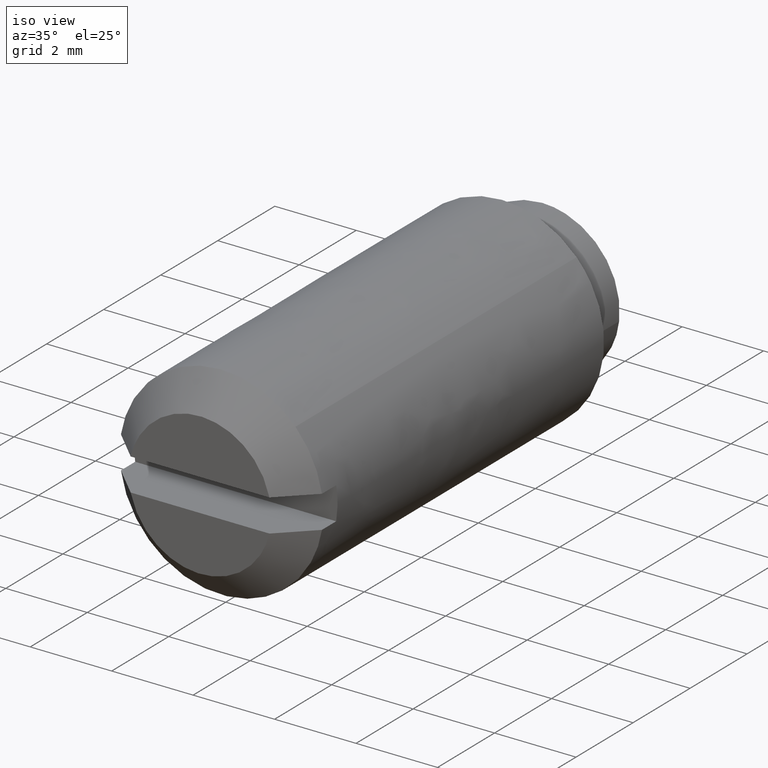
[diagram: clean part render]
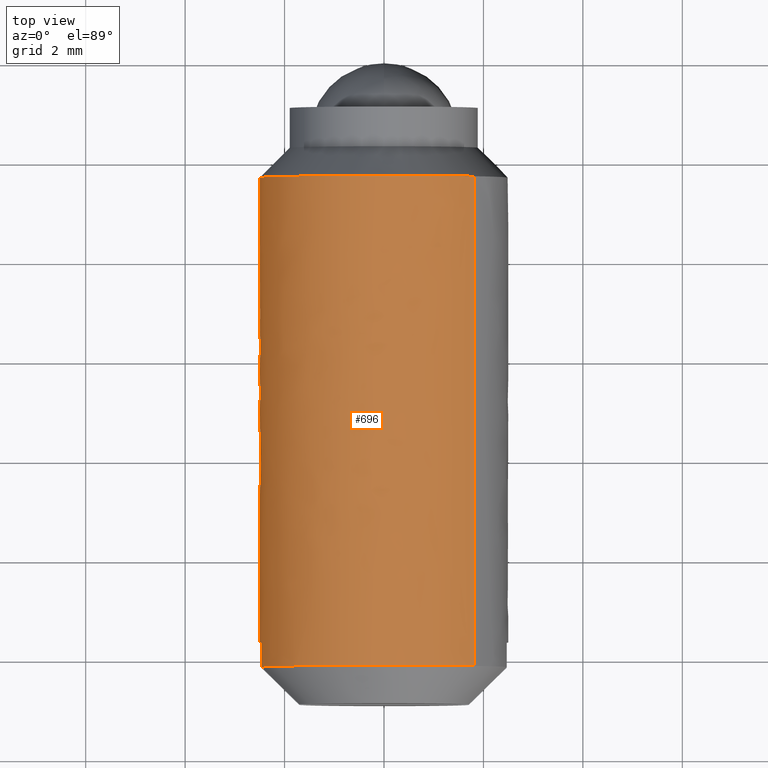
[diagram: tour spotlight — one face highlighted and labeled with its STEP entity id]
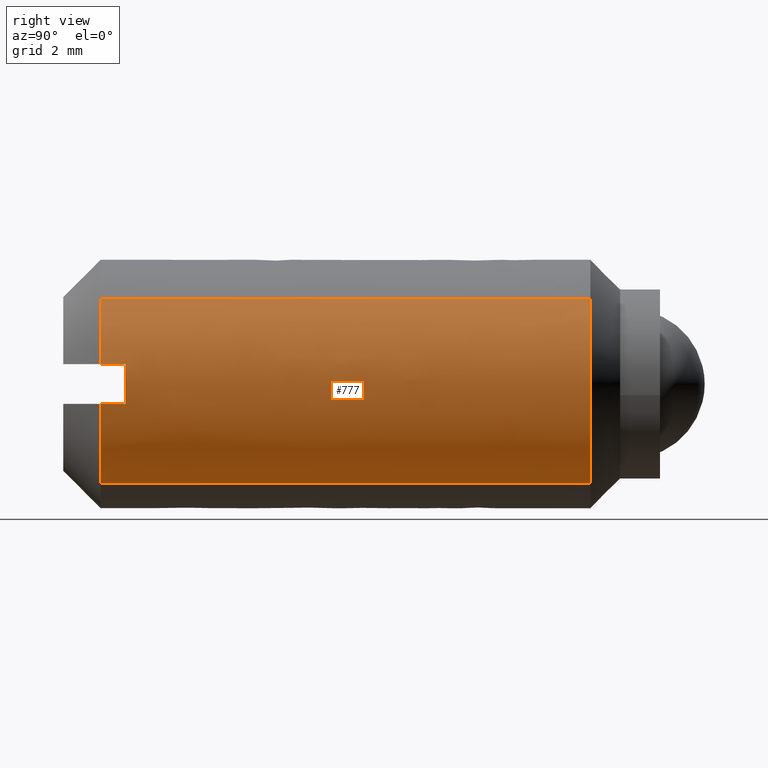
[diagram: tour spotlight — one face highlighted and labeled with its STEP entity id]
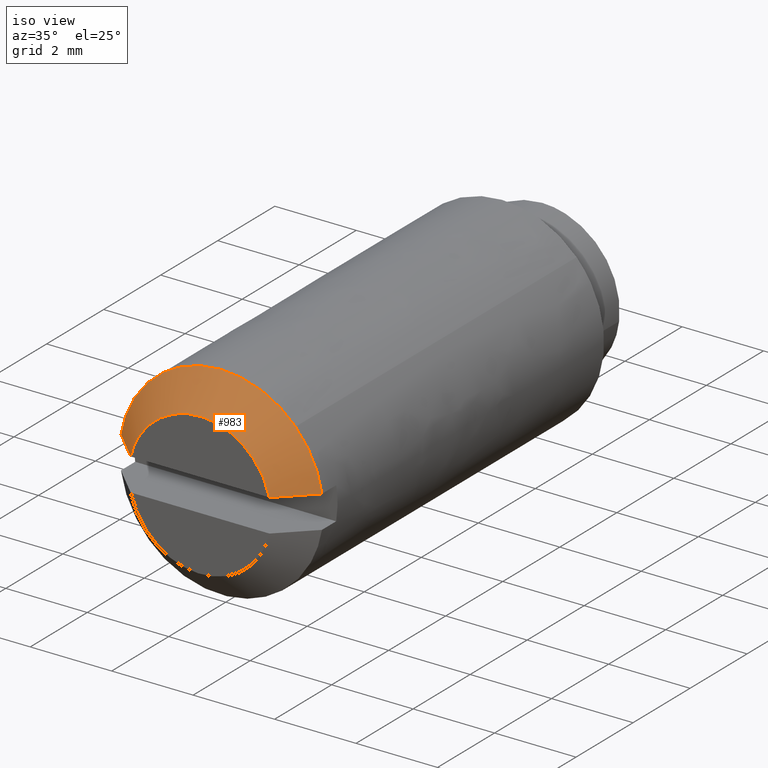
[diagram: tour spotlight — one face highlighted and labeled with its STEP entity id]
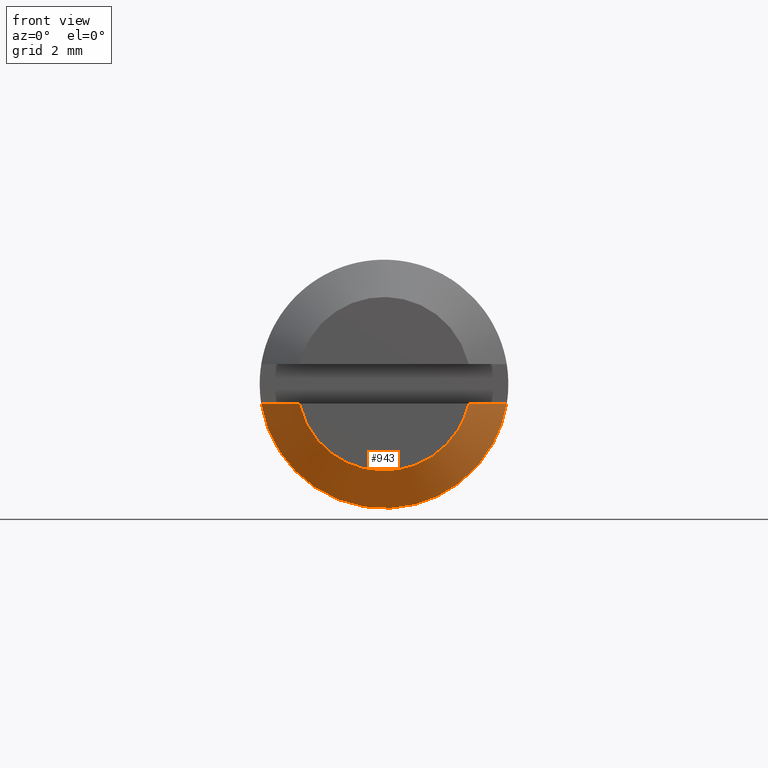
[diagram: tour spotlight — one face highlighted and labeled with its STEP entity id]
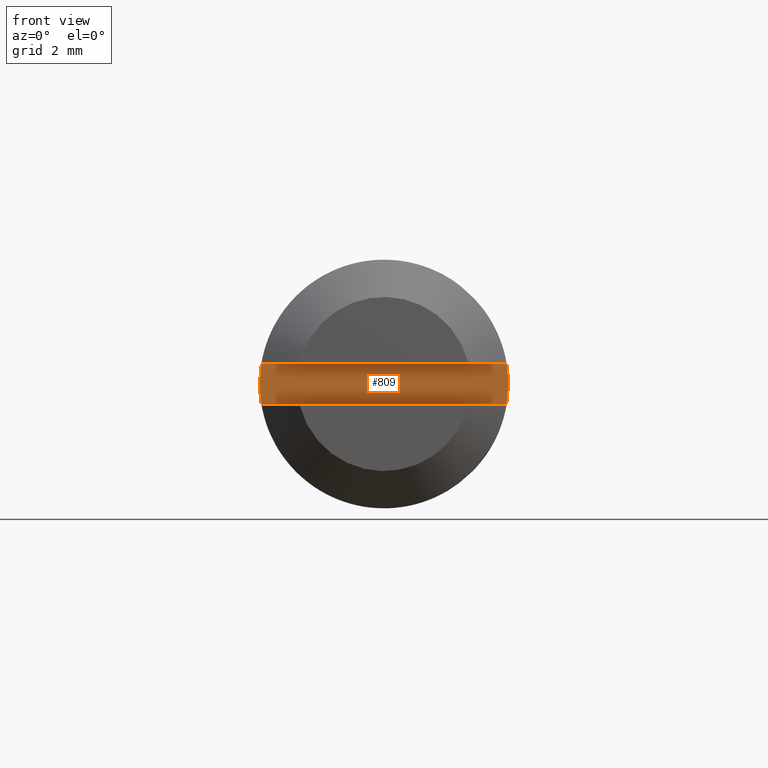
[diagram: tour spotlight — one face highlighted and labeled with its STEP entity id]
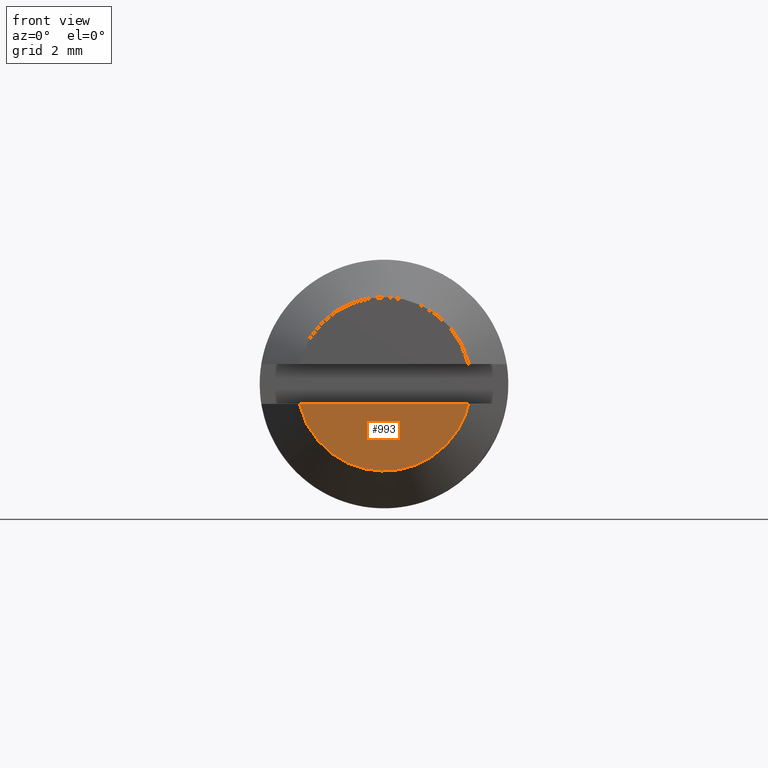
[diagram: tour spotlight — one face highlighted and labeled with its STEP entity id]
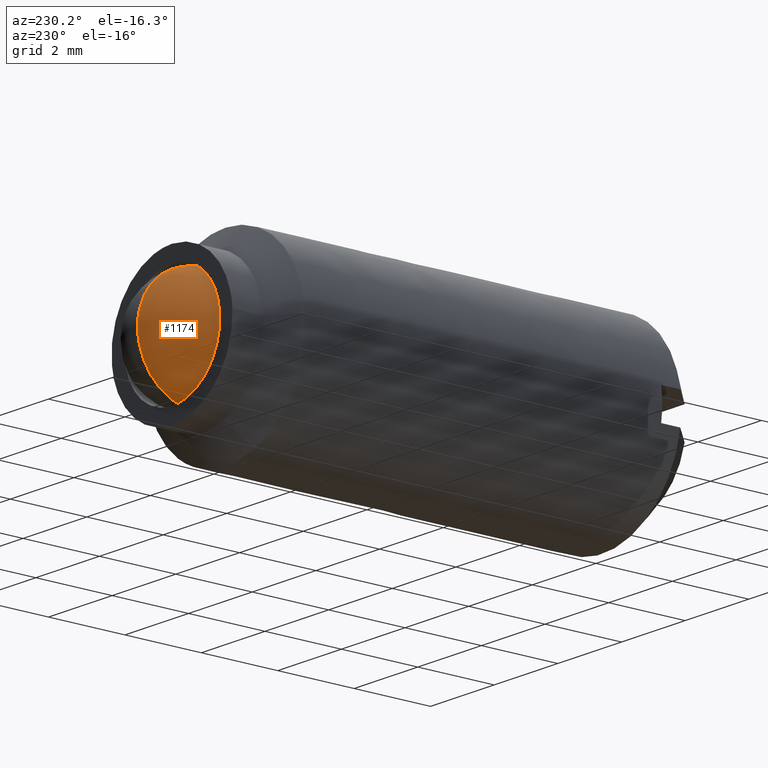
[diagram: tour spotlight — one face highlighted and labeled with its STEP entity id]
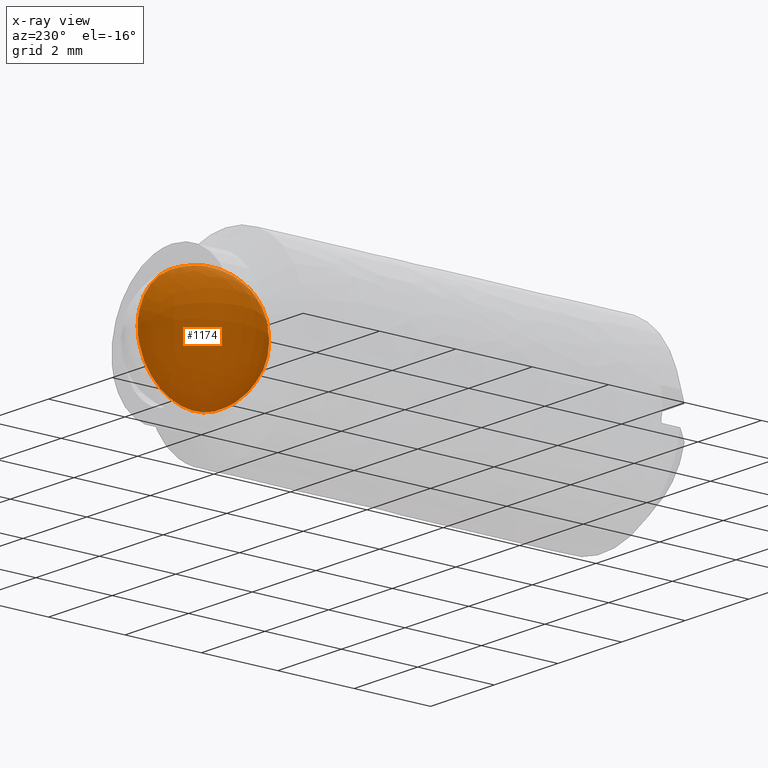
[diagram: x-ray of the same camera — body ghosted, this tour face saturated]
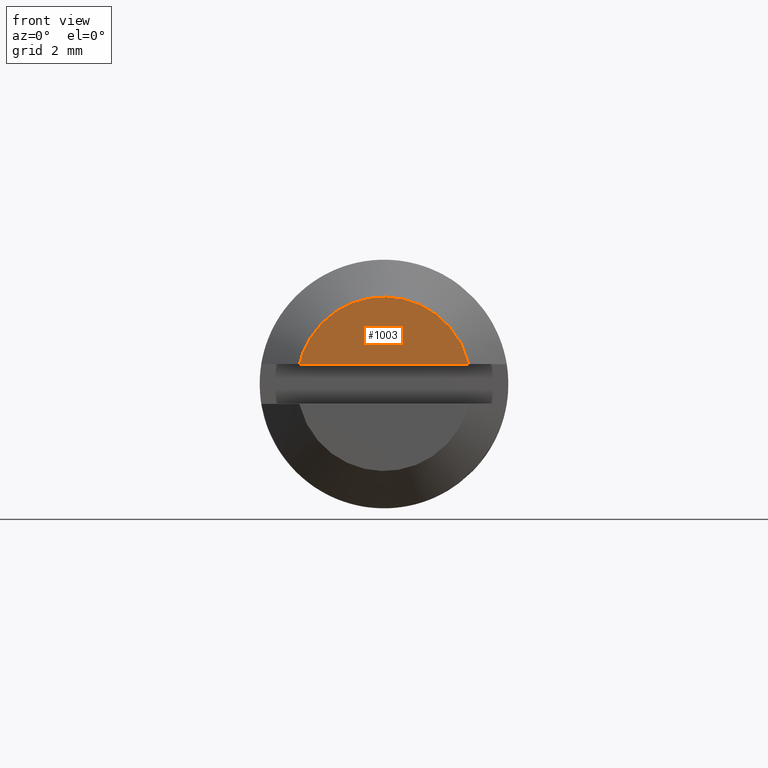
[diagram: tour spotlight — one face highlighted and labeled with its STEP entity id]
A machine part: a face-by-face anatomy tour. The part has 19 B-rep faces; the first image is the clean iso view, then the 8 largest visible faces are spotlighted one at a time (largest first), each with its STEP entity span.

Face 1 — top view, entity #696. In plain terms, the highlighted face is a freeform B-spline surface patch.
Definition (entity closure, byte-faithful):
#465=CARTESIAN_POINT('',(-2.495336996056258,-2.300000000002961,0.152621348859628));
#466=VERTEX_POINT('',#465);
#472=CARTESIAN_POINT('',(0.0,-2.300000000000000,2.499999999999999));
#473=VERTEX_POINT('',#472);
#474=CARTESIAN_POINT('',(0.0,-2.300000000000000,2.499999999999999));
#475=CARTESIAN_POINT('',(-2.351765167222105,-2.300000000000000,2.500000000000000));
#476=CARTESIAN_POINT('',(-2.495336996056259,-2.300000000002961,0.152621348859628));
#484=(BOUNDED_CURVE()B_SPLINE_CURVE(2,(#474,#475,#476),.UNSPECIFIED.,.F.,.U.)B_SPLINE_CURVE_WITH_KNOTS((3,3),(0.500000000000000,0.739332962238883),.UNSPECIFIED.)CURVE()GEOMETRIC_REPRESENTATION_ITEM()RATIONAL_B_SPLINE_CURVE((1.0,0.719603993286780,0.976072041666589))REPRESENTATION_ITEM(''));
#485=EDGE_CURVE('',#473,#466,#484,.T.);
#487=CARTESIAN_POINT('',(1.818315486528456,-2.299999999999970,1.715729813068122));
#488=VERTEX_POINT('',#487);
#489=CARTESIAN_POINT('',(1.818315486528456,-2.299999999999971,1.715729813068122));
#490=CARTESIAN_POINT('',(1.078292277158913,-2.300000000000000,2.500000000000000));
#491=CARTESIAN_POINT('',(0.0,-2.300000000000000,2.499999999999999));
#499=(BOUNDED_CURVE()B_SPLINE_CURVE(2,(#489,#490,#491),.UNSPECIFIED.,.F.,.U.)B_SPLINE_CURVE_WITH_KNOTS((3,3),(0.370620956215220,0.500000000000000),.UNSPECIFIED.)CURVE()GEOMETRIC_REPRESENTATION_ITEM()RATIONAL_B_SPLINE_CURVE((0.853733119474259,0.848423021675476,1.0))REPRESENTATION_ITEM(''));
#500=EDGE_CURVE('',#488,#473,#499,.T.);
#502=CARTESIAN_POINT('',(1.494303351258331,-2.299999999999954,-2.004259837051412));
#503=VERTEX_POINT('',#502);
#519=CARTESIAN_POINT('',(0.0,-2.300000000000000,-2.500000000000001));
#520=VERTEX_POINT('',#519);
#521=CARTESIAN_POINT('',(0.0,-2.300000000000000,-2.500000000000001));
#522=CARTESIAN_POINT('',(0.829382921732118,-2.300000000000000,-2.500000000000000));
#523=CARTESIAN_POINT('',(1.494303351258331,-2.299999999999954,-2.004259837051412));
#531=(BOUNDED_CURVE()B_SPLINE_CURVE(2,(#521,#522,#523),.UNSPECIFIED.,.F.,.U.)B_SPLINE_CURVE_WITH_KNOTS((3,3),(0.0,0.103121803616288),.UNSPECIFIED.)CURVE()GEOMETRIC_REPRESENTATION_ITEM()RATIONAL_B_SPLINE_CURVE((1.0,0.879185292035907,0.858039628780873))REPRESENTATION_ITEM(''));
#532=EDGE_CURVE('',#520,#503,#531,.T.);
#534=CARTESIAN_POINT('',(-0.879044935992926,-2.300000000001367,-2.340358946937847));
#535=VERTEX_POINT('',#534);
#536=CARTESIAN_POINT('',(-0.879044935992926,-2.300000000001368,-2.340358946937847));
#537=CARTESIAN_POINT('',(-0.454018465181815,-2.299999999999999,-2.500000000000001));
#538=CARTESIAN_POINT('',(0.0,-2.300000000000000,-2.500000000000001));
#546=(BOUNDED_CURVE()B_SPLINE_CURVE(2,(#536,#537,#538),.UNSPECIFIED.,.F.,.U.)B_SPLINE_CURVE_WITH_KNOTS((3,3),(0.940284170897085,1.0),.UNSPECIFIED.)CURVE()GEOMETRIC_REPRESENTATION_ITEM()RATIONAL_B_SPLINE_CURVE((0.893499554633533,0.930038554399733,1.0))REPRESENTATION_ITEM(''));
#547=EDGE_CURVE('',#535,#520,#546,.T.);
#573=CARTESIAN_POINT('',(-2.495336996056259,-2.300000000002961,0.152621348859628));
#574=CARTESIAN_POINT('',(-2.500000000000000,-2.300000000000000,0.076381908268839));
#575=CARTESIAN_POINT('',(-2.500000000000000,-2.300000000000000,-8.511014E-016));
#576=CARTESIAN_POINT('',(-2.500000000000000,-2.300000000000000,-1.731523989214695));
#577=CARTESIAN_POINT('',(-0.879044935992926,-2.300000000001367,-2.340358946937847));
#585=(BOUNDED_CURVE()B_SPLINE_CURVE(2,(#573,#574,#575,#576,#577),.UNSPECIFIED.,.F.,.U.)B_SPLINE_CURVE_WITH_KNOTS((3,2,3),(0.739332962238884,0.750000000000000,0.940284170897086),.UNSPECIFIED.)CURVE()GEOMETRIC_REPRESENTATION_ITEM()RATIONAL_B_SPLINE_CURVE((0.976072041666591,0.987502787899768,1.0,0.777068226786814,0.893499554633534))REPRESENTATION_ITEM(''));
#586=EDGE_CURVE('',#466,#535,#585,.T.);
#592=CARTESIAN_POINT('',(1.818315436100052,-2.053750000000000,1.715729866511703));
#593=CARTESIAN_POINT('',(0.290472229110461,-2.053750000000000,3.334924671844324));
#594=CARTESIAN_POINT('',(-1.494304054914435,-2.053749999999999,2.004259312430971));
#595=CARTESIAN_POINT('',(-3.498563367345406,-2.053749999999998,0.509955257516536));
#596=CARTESIAN_POINT('',(-2.004259312430972,-2.053749999999999,-1.494304054914436));
#597=CARTESIAN_POINT('',(-0.509955257516536,-2.053749999999998,-3.498563367345407));
#598=CARTESIAN_POINT('',(1.494304054914435,-2.053749999999999,-2.004259312430972));
#599=CARTESIAN_POINT('',(1.818315436100052,-12.402406250000002,1.715729866511703));
#600=CARTESIAN_POINT('',(0.290472229110461,-12.402406250000002,3.334924671844324));
#601=CARTESIAN_POINT('',(-1.494304054914435,-12.402406250000000,2.004259312430971));
#602=CARTESIAN_POINT('',(-3.498563367345406,-12.402406250000002,0.509955257516536));
#603=CARTESIAN_POINT('',(-2.004259312430972,-12.402406250000000,-1.494304054914436));
#604=CARTESIAN_POINT('',(-0.509955257516536,-12.402406250000002,-3.498563367345407));
#605=CARTESIAN_POINT('',(1.494304054914435,-12.402406250000000,-2.004259312430972));
#613=(BOUNDED_SURFACE()B_SPLINE_SURFACE(2,1,((#592,#599),(#593,#600),(#594,#601),(#595,#602),(#596,#603),(#597,#604),(#598,#605)),.UNSPECIFIED.,.F.,.F.,.U.)B_SPLINE_SURFACE_WITH_KNOTS((3,2,2,3),(2,2),(0.0,3.810764773832473,7.952900397563421,12.095036021294369),(0.0,10.348656249999999),.UNSPECIFIED.)GEOMETRIC_REPRESENTATION_ITEM()RATIONAL_B_SPLINE_SURFACE(((0.956886118190660,0.956886118190660),(0.730538238691624,0.730538238691624),(1.0,1.0),(0.707106781186548,0.707106781186548),(1.0,1.0),(0.707106781186548,0.707106781186548),(1.0,1.0)))REPRESENTATION_ITEM('')SURFACE());
#614=ORIENTED_EDGE('',*,*,#500,.T.);
#615=ORIENTED_EDGE('',*,*,#485,.T.);
#616=ORIENTED_EDGE('',*,*,#586,.T.);
#617=ORIENTED_EDGE('',*,*,#547,.T.);
#618=ORIENTED_EDGE('',*,*,#532,.T.);
#619=CARTESIAN_POINT('',(1.494304036467052,-12.150000000000000,-2.004259374637578));
#620=VERTEX_POINT('',#619);
#621=CARTESIAN_POINT('',(1.494303351258331,-2.299999999999954,-2.004259837051412));
#622=CARTESIAN_POINT('',(1.494304036467052,-12.150000000000000,-2.004259374637578));
#623=QUASI_UNIFORM_CURVE('',1,(#621,#622),.UNSPECIFIED.,.F.,.U.);
#624=EDGE_CURVE('',#503,#620,#623,.T.);
#625=ORIENTED_EDGE('',*,*,#624,.T.);
#626=CARTESIAN_POINT('',(-2.467793000000000,-12.150000000000000,-0.400000000000000));
#627=VERTEX_POINT('',#626);
#628=CARTESIAN_POINT('',(-2.467793000000000,-12.150000000000000,-0.400000000000000));
#629=CARTESIAN_POINT('',(-2.127407422512504,-12.149999999999997,-2.500000000000001));
#630=CARTESIAN_POINT('',(0.0,-12.150000000000000,-2.500000000000001));
#631=CARTESIAN_POINT('',(0.829383796575018,-12.149999999999995,-2.500000000000001));
#632=CARTESIAN_POINT('',(1.494304036467052,-12.149999999999995,-2.004259374637578));
#640=(BOUNDED_CURVE()B_SPLINE_CURVE(2,(#628,#629,#630,#631,#632),.UNSPECIFIED.,.F.,.U.)B_SPLINE_CURVE_WITH_KNOTS((3,2,3),(0.0,0.500000000000000,0.728112247232875),.UNSPECIFIED.)CURVE()GEOMETRIC_REPRESENTATION_ITEM()RATIONAL_B_SPLINE_CURVE((1.0,0.761577300960691,1.0,0.891225724661632,0.881702426877514))REPRESENTATION_ITEM(''));
#641=EDGE_CURVE('',#627,#620,#640,.T.);
#642=ORIENTED_EDGE('',*,*,#641,.F.);
#643=CARTESIAN_POINT('',(-2.467793000000000,-11.650000000000000,-0.400000000000000));
#644=VERTEX_POINT('',#643);
#645=CARTESIAN_POINT('',(-2.467793000000000,-11.650000000000000,-0.400000000000000));
#646=CARTESIAN_POINT('',(-2.467793000000000,-12.150000000000000,-0.400000000000000));
#647=QUASI_UNIFORM_CURVE('',1,(#645,#646),.UNSPECIFIED.,.F.,.U.);
#648=EDGE_CURVE('',#644,#627,#647,.T.);
#649=ORIENTED_EDGE('',*,*,#648,.F.);
#650=CARTESIAN_POINT('',(-2.467792535850615,-11.650000000000000,0.399999999999991));
#651=VERTEX_POINT('',#650);
#652=CARTESIAN_POINT('',(-2.467792535850615,-11.650000000000000,0.399999999999990));
#653=CARTESIAN_POINT('',(-2.532627801631262,-11.650000000000000,0.000000037616551));
#654=CARTESIAN_POINT('',(-2.467793000000000,-11.650000000000000,-0.400000000000000));
#662=(BOUNDED_CURVE()B_SPLINE_CURVE(2,(#652,#653,#654),.UNSPECIFIED.,.F.,.U.)CURVE()GEOMETRIC_REPRESENTATION_ITEM()QUASI_UNIFORM_CURVE()RATIONAL_B_SPLINE_CURVE((1.0,0.987117016716690,1.0))REPRESENTATION_ITEM(''));
#663=EDGE_CURVE('',#651,#644,#662,.T.);
#664=ORIENTED_EDGE('',*,*,#663,.F.);
#665=CARTESIAN_POINT('',(-2.467792535850615,-12.150000000000000,0.399999999999991));
#666=VERTEX_POINT('',#665);
#667=CARTESIAN_POINT('',(-2.467792535850615,-11.650000000000000,0.399999999999991));
#668=CARTESIAN_POINT('',(-2.467792535850615,-12.150000000000000,0.399999999999991));
#669=QUASI_UNIFORM_CURVE('',1,(#667,#668),.UNSPECIFIED.,.F.,.U.);
#670=EDGE_CURVE('',#651,#666,#669,.T.);
#671=ORIENTED_EDGE('',*,*,#670,.T.);
#672=CARTESIAN_POINT('',(1.818315981910234,-12.150000000000000,1.715729391257244));
#673=VERTEX_POINT('',#672);
#674=CARTESIAN_POINT('',(1.818315981910233,-12.149999999999999,1.715729391257244));
#675=CARTESIAN_POINT('',(1.078293002430174,-12.150000000000004,2.499999983984353));
#676=CARTESIAN_POINT('',(0.000000037131944,-12.150000000000000,2.499999999999999));
#677=CARTESIAN_POINT('',(-2.127407353370267,-12.150000000000000,2.500000031597907));
#678=CARTESIAN_POINT('',(-2.467792535850615,-12.150000000000000,0.399999999999992));
#686=(BOUNDED_CURVE()B_SPLINE_CURVE(2,(#674,#675,#676,#677,#678),.UNSPECIFIED.,.F.,.U.)B_SPLINE_CURVE_WITH_KNOTS((3,2,3),(0.212803628645489,0.500000000000000,1.0),.UNSPECIFIED.)CURVE()GEOMETRIC_REPRESENTATION_ITEM()RATIONAL_B_SPLINE_CURVE((0.883427648863178,0.863051734739189,1.0,0.761577305773540,1.0))REPRESENTATION_ITEM(''));
#687=EDGE_CURVE('',#673,#666,#686,.T.);
#688=ORIENTED_EDGE('',*,*,#687,.F.);
#689=CARTESIAN_POINT('',(1.818315486528456,-2.299999999999970,1.715729813068122));
#690=CARTESIAN_POINT('',(1.818315981910234,-12.150000000000000,1.715729391257244));
#691=QUASI_UNIFORM_CURVE('',1,(#689,#690),.UNSPECIFIED.,.F.,.U.);
#692=EDGE_CURVE('',#488,#673,#691,.T.);
#693=ORIENTED_EDGE('',*,*,#692,.F.);
#694=EDGE_LOOP('',(#614,#615,#616,#617,#618,#625,#642,#649,#664,#671,#688,#693));
#695=FACE_OUTER_BOUND('',#694,.T.);
#696=ADVANCED_FACE('',(#695),#613,.T.);

Face 2 — right view, entity #777. In plain terms, the highlighted face is a freeform B-spline surface patch.
Definition (entity closure, byte-faithful):
#487=CARTESIAN_POINT('',(1.818315486528456,-2.299999999999970,1.715729813068122));
#488=VERTEX_POINT('',#487);
#502=CARTESIAN_POINT('',(1.494303351258331,-2.299999999999954,-2.004259837051412));
#503=VERTEX_POINT('',#502);
#504=CARTESIAN_POINT('',(1.494303351258332,-2.299999999999953,-2.004259837051412));
#505=CARTESIAN_POINT('',(2.500000000000000,-2.300000000000000,-1.254449486241988));
#506=CARTESIAN_POINT('',(2.500000000000000,-2.300000000000000,-8.511014E-016));
#507=CARTESIAN_POINT('',(2.500000000000000,-2.300000000000000,0.993286470697336));
#508=CARTESIAN_POINT('',(1.818315486528456,-2.299999999999971,1.715729813068123));
#516=(BOUNDED_CURVE()B_SPLINE_CURVE(2,(#504,#505,#506,#507,#508),.UNSPECIFIED.,.F.,.U.)B_SPLINE_CURVE_WITH_KNOTS((3,2,3),(0.103121803616288,0.250000000000000,0.370620956215219),.UNSPECIFIED.)CURVE()GEOMETRIC_REPRESENTATION_ITEM()RATIONAL_B_SPLINE_CURVE((0.858039628780873,0.827921489150641,1.0,0.858683759511071,0.853733119474259))REPRESENTATION_ITEM(''));
#517=EDGE_CURVE('',#503,#488,#516,.T.);
#619=CARTESIAN_POINT('',(1.494304036467052,-12.150000000000000,-2.004259374637578));
#620=VERTEX_POINT('',#619);
#621=CARTESIAN_POINT('',(1.494303351258331,-2.299999999999954,-2.004259837051412));
#622=CARTESIAN_POINT('',(1.494304036467052,-12.150000000000000,-2.004259374637578));
#623=QUASI_UNIFORM_CURVE('',1,(#621,#622),.UNSPECIFIED.,.F.,.U.);
#624=EDGE_CURVE('',#503,#620,#623,.T.);
#672=CARTESIAN_POINT('',(1.818315981910234,-12.150000000000000,1.715729391257244));
#673=VERTEX_POINT('',#672);
#689=CARTESIAN_POINT('',(1.818315486528456,-2.299999999999970,1.715729813068122));
#690=CARTESIAN_POINT('',(1.818315981910234,-12.150000000000000,1.715729391257244));
#691=QUASI_UNIFORM_CURVE('',1,(#689,#690),.UNSPECIFIED.,.F.,.U.);
#692=EDGE_CURVE('',#488,#673,#691,.T.);
#697=CARTESIAN_POINT('',(1.494304054914435,-2.053749999999999,-2.004259312430972));
#698=CARTESIAN_POINT('',(3.498563367345406,-2.053749999999998,-0.509955257516537));
#699=CARTESIAN_POINT('',(2.004259312430972,-2.053749999999999,1.494304054914434));
#700=CARTESIAN_POINT('',(1.917700511125733,-2.053749999999999,1.610402437314139));
#701=CARTESIAN_POINT('',(1.818315436100052,-2.053750000000000,1.715729866511703));
#702=CARTESIAN_POINT('',(1.494304054914435,-12.402406250000000,-2.004259312430972));
#703=CARTESIAN_POINT('',(3.498563367345406,-12.402406250000002,-0.509955257516537));
#704=CARTESIAN_POINT('',(2.004259312430972,-12.402406250000000,1.494304054914434));
#705=CARTESIAN_POINT('',(1.917700511125733,-12.402406250000006,1.610402437314139));
#706=CARTESIAN_POINT('',(1.818315436100052,-12.402406250000002,1.715729866511703));
#714=(BOUNDED_SURFACE()B_SPLINE_SURFACE(2,1,((#697,#702),(#698,#703),(#699,#704),(#700,#705),(#701,#706)),.UNSPECIFIED.,.F.,.F.,.U.)B_SPLINE_SURFACE_WITH_KNOTS((3,2,3),(2,2),(0.0,4.142135623730948,4.473506473629424),(0.0,10.348656249999999),.UNSPECIFIED.)GEOMETRIC_REPRESENTATION_ITEM()RATIONAL_B_SPLINE_SURFACE(((1.0,1.0),(0.707106781186548,0.707106781186548),(1.0,1.0),(0.976568542494924,0.976568542494924),(0.956886118190660,0.956886118190660)))REPRESENTATION_ITEM('')SURFACE());
#715=ORIENTED_EDGE('',*,*,#517,.T.);
#716=ORIENTED_EDGE('',*,*,#692,.T.);
#717=CARTESIAN_POINT('',(2.467793000000000,-12.150000000000000,0.399999999999991));
#718=VERTEX_POINT('',#717);
#719=CARTESIAN_POINT('',(2.467793000000000,-12.150000000000000,0.399999999999991));
#720=CARTESIAN_POINT('',(2.345002795860268,-12.149999999999999,1.157550982614433));
#721=CARTESIAN_POINT('',(1.818315981910233,-12.149999999999999,1.715729391257244));
#729=(BOUNDED_CURVE()B_SPLINE_CURVE(2,(#719,#720,#721),.UNSPECIFIED.,.F.,.U.)B_SPLINE_CURVE_WITH_KNOTS((3,3),(0.0,0.212803628645489),.UNSPECIFIED.)CURVE()GEOMETRIC_REPRESENTATION_ITEM()RATIONAL_B_SPLINE_CURVE((1.0,0.898525571034351,0.883427648863178))REPRESENTATION_ITEM(''));
#730=EDGE_CURVE('',#718,#673,#729,.T.);
#731=ORIENTED_EDGE('',*,*,#730,.F.);
#732=CARTESIAN_POINT('',(2.467793000000000,-11.650000000000000,0.399999999999991));
#733=VERTEX_POINT('',#732);
#734=CARTESIAN_POINT('',(2.467793000000000,-11.650000000000000,0.399999999999991));
#735=CARTESIAN_POINT('',(2.467793000000000,-12.150000000000000,0.399999999999991));
#736=QUASI_UNIFORM_CURVE('',1,(#734,#735),.UNSPECIFIED.,.F.,.U.);
#737=EDGE_CURVE('',#733,#718,#736,.T.);
#738=ORIENTED_EDGE('',*,*,#737,.F.);
#739=CARTESIAN_POINT('',(2.467793000000000,-11.650000000000000,-0.400000000000000));
#740=VERTEX_POINT('',#739);
#741=CARTESIAN_POINT('',(2.467793000000000,-11.650000000000000,-0.400000000000000));
#742=CARTESIAN_POINT('',(2.532627795534064,-11.650000000000004,-5.800482E-015));
#743=CARTESIAN_POINT('',(2.467793000000000,-11.650000000000000,0.399999999999991));
#751=(BOUNDED_CURVE()B_SPLINE_CURVE(2,(#741,#742,#743),.UNSPECIFIED.,.F.,.U.)CURVE()GEOMETRIC_REPRESENTATION_ITEM()QUASI_UNIFORM_CURVE()RATIONAL_B_SPLINE_CURVE((1.0,0.987117019093134,1.0))REPRESENTATION_ITEM(''));
#752=EDGE_CURVE('',#740,#733,#751,.T.);
#753=ORIENTED_EDGE('',*,*,#752,.F.);
#754=CARTESIAN_POINT('',(2.467793000000000,-12.150000000000000,-0.400000000000000));
#755=VERTEX_POINT('',#754);
#756=CARTESIAN_POINT('',(2.467793000000000,-11.650000000000000,-0.400000000000000));
#757=CARTESIAN_POINT('',(2.467793000000000,-12.150000000000000,-0.400000000000000));
#758=QUASI_UNIFORM_CURVE('',1,(#756,#757),.UNSPECIFIED.,.F.,.U.);
#759=EDGE_CURVE('',#740,#755,#758,.T.);
#760=ORIENTED_EDGE('',*,*,#759,.T.);
#761=CARTESIAN_POINT('',(1.494304036467051,-12.149999999999997,-2.004259374637579));
#762=CARTESIAN_POINT('',(2.305832144477165,-12.149999999999995,-1.399213301305182));
#763=CARTESIAN_POINT('',(2.467793000000000,-12.150000000000000,-0.400000000000000));
#771=(BOUNDED_CURVE()B_SPLINE_CURVE(2,(#761,#762,#763),.UNSPECIFIED.,.F.,.U.)B_SPLINE_CURVE_WITH_KNOTS((3,3),(0.728112247232874,1.0),.UNSPECIFIED.)CURVE()GEOMETRIC_REPRESENTATION_ITEM()RATIONAL_B_SPLINE_CURVE((0.881702426877514,0.870351576299059,1.0))REPRESENTATION_ITEM(''));
#772=EDGE_CURVE('',#620,#755,#771,.T.);
#773=ORIENTED_EDGE('',*,*,#772,.F.);
#774=ORIENTED_EDGE('',*,*,#624,.F.);
#775=EDGE_LOOP('',(#715,#716,#731,#738,#753,#760,#773,#774));
#776=FACE_OUTER_BOUND('',#775,.T.);
#777=ADVANCED_FACE('',(#776),#714,.T.);

Face 3 — iso view, entity #983. In plain terms, the highlighted face is a freeform B-spline surface patch.
Definition (entity closure, byte-faithful):
#665=CARTESIAN_POINT('',(-2.467792535850615,-12.150000000000000,0.399999999999991));
#666=VERTEX_POINT('',#665);
#672=CARTESIAN_POINT('',(1.818315981910234,-12.150000000000000,1.715729391257244));
#673=VERTEX_POINT('',#672);
#674=CARTESIAN_POINT('',(1.818315981910233,-12.149999999999999,1.715729391257244));
#675=CARTESIAN_POINT('',(1.078293002430174,-12.150000000000004,2.499999983984353));
#676=CARTESIAN_POINT('',(0.000000037131944,-12.150000000000000,2.499999999999999));
#677=CARTESIAN_POINT('',(-2.127407353370267,-12.150000000000000,2.500000031597907));
#678=CARTESIAN_POINT('',(-2.467792535850615,-12.150000000000000,0.399999999999992));
#686=(BOUNDED_CURVE()B_SPLINE_CURVE(2,(#674,#675,#676,#677,#678),.UNSPECIFIED.,.F.,.U.)B_SPLINE_CURVE_WITH_KNOTS((3,2,3),(0.212803628645489,0.500000000000000,1.0),.UNSPECIFIED.)CURVE()GEOMETRIC_REPRESENTATION_ITEM()RATIONAL_B_SPLINE_CURVE((0.883427648863178,0.863051734739189,1.0,0.761577305773540,1.0))REPRESENTATION_ITEM(''));
#687=EDGE_CURVE('',#673,#666,#686,.T.);
#717=CARTESIAN_POINT('',(2.467793000000000,-12.150000000000000,0.399999999999991));
#718=VERTEX_POINT('',#717);
#719=CARTESIAN_POINT('',(2.467793000000000,-12.150000000000000,0.399999999999991));
#720=CARTESIAN_POINT('',(2.345002795860268,-12.149999999999999,1.157550982614433));
#721=CARTESIAN_POINT('',(1.818315981910233,-12.149999999999999,1.715729391257244));
#729=(BOUNDED_CURVE()B_SPLINE_CURVE(2,(#719,#720,#721),.UNSPECIFIED.,.F.,.U.)B_SPLINE_CURVE_WITH_KNOTS((3,3),(0.0,0.212803628645489),.UNSPECIFIED.)CURVE()GEOMETRIC_REPRESENTATION_ITEM()RATIONAL_B_SPLINE_CURVE((1.0,0.898525571034351,0.883427648863178))REPRESENTATION_ITEM(''));
#730=EDGE_CURVE('',#718,#673,#729,.T.);
#856=CARTESIAN_POINT('',(1.703672503740085,-12.900000000000000,0.399999999999991));
#857=VERTEX_POINT('',#856);
#858=CARTESIAN_POINT('',(1.703672503740085,-12.900000000000000,0.399999999999991));
#859=CARTESIAN_POINT('',(1.764615516513866,-12.840658835844939,0.399999999999991));
#860=CARTESIAN_POINT('',(1.825472964386370,-12.781228711003140,0.399999999999991));
#861=CARTESIAN_POINT('',(2.080599052584818,-12.531664605991240,0.399999999999992));
#862=CARTESIAN_POINT('',(2.274324897358173,-12.340966288524029,0.399999999999992));
#863=CARTESIAN_POINT('',(2.467793000000000,-12.150000000000000,0.399999999999991));
#864=B_SPLINE_CURVE_WITH_KNOTS('',3,(#858,#859,#860,#861,#862,#863),.UNSPECIFIED.,.F.,.U.,(4,2,4),(0.835884056411541,0.874999999999999,1.0),.UNSPECIFIED.);
#865=EDGE_CURVE('',#857,#718,#864,.T.);
#867=CARTESIAN_POINT('',(-1.703672503740085,-12.900000000000000,0.399999999999991));
#868=VERTEX_POINT('',#867);
#874=CARTESIAN_POINT('',(-2.467792535850615,-12.150000000000000,0.399999999999991));
#875=CARTESIAN_POINT('',(-2.273182254908020,-12.342093709223880,0.399999999999992));
#876=CARTESIAN_POINT('',(-2.078308495509723,-12.533919775919220,0.399999999999991));
#877=CARTESIAN_POINT('',(-1.823167580692881,-12.783478675686180,0.399999999999991));
#878=CARTESIAN_POINT('',(-1.763461630120250,-12.841781583011450,0.399999999999991));
#879=CARTESIAN_POINT('',(-1.703672503740085,-12.900000000000000,0.399999999999991));
#880=B_SPLINE_CURVE_WITH_KNOTS('',3,(#874,#875,#876,#877,#878,#879),.UNSPECIFIED.,.F.,.U.,(4,2,4),(0.0,0.124999999999999,0.163147342575306),.UNSPECIFIED.);
#881=EDGE_CURVE('',#666,#868,#880,.T.);
#944=CARTESIAN_POINT('',(1.719380882907873,-12.918749999999999,0.202375744571671));
#945=CARTESIAN_POINT('',(2.501947470679034,-12.130781250000000,0.294485932286016));
#946=CARTESIAN_POINT('',(1.538753624927346,-12.918750000000003,1.736981855403287));
#947=CARTESIAN_POINT('',(2.239108726958814,-12.130781249999997,2.527559427316541));
#948=CARTESIAN_POINT('',(-0.006435402441734,-12.918749999999999,1.731238039119810));
#949=CARTESIAN_POINT('',(-0.009364439852714,-12.130781250000000,2.519201345192127));
#950=CARTESIAN_POINT('',(-1.551624429810814,-12.918750000000003,1.725494222836333));
#951=CARTESIAN_POINT('',(-2.257837606664244,-12.130781249999997,2.510843263067713));
#952=CARTESIAN_POINT('',(-1.720837899384461,-12.918749999999999,0.189587675079552));
#953=CARTESIAN_POINT('',(-2.504067640051961,-12.130781250000000,0.275877444522350));
#961=(BOUNDED_SURFACE()B_SPLINE_SURFACE(1,2,((#944,#946,#948,#950,#952),(#945,#947,#949,#951,#953)),.UNSPECIFIED.,.F.,.F.,.U.)B_SPLINE_SURFACE_WITH_KNOTS((2,2),(3,2,3),(0.0,1.0),(0.0,3.842947207187311,7.685894414374622),.UNSPECIFIED.)GEOMETRIC_REPRESENTATION_ITEM()RATIONAL_B_SPLINE_SURFACE(((1.0,0.746057375061700,1.0,0.746057375061700,1.0),(1.0,0.746057375061700,1.0,0.746057375061700,1.0)))REPRESENTATION_ITEM('')SURFACE());
#962=ORIENTED_EDGE('',*,*,#730,.T.);
#963=ORIENTED_EDGE('',*,*,#687,.T.);
#964=ORIENTED_EDGE('',*,*,#881,.T.);
#965=CARTESIAN_POINT('',(1.703672503740084,-12.900000000000000,0.399999999999991));
#966=CARTESIAN_POINT('',(1.386710177462864,-12.900000000000004,1.749999999999999));
#967=CARTESIAN_POINT('',(0.0,-12.900000000000000,1.749999999999999));
#968=CARTESIAN_POINT('',(-1.386710177462864,-12.900000000000004,1.749999999999999));
#969=CARTESIAN_POINT('',(-1.703672503740084,-12.900000000000000,0.399999999999991));
#977=(BOUNDED_CURVE()B_SPLINE_CURVE(2,(#965,#966,#967,#968,#969),.UNSPECIFIED.,.F.,.U.)B_SPLINE_CURVE_WITH_KNOTS((3,2,3),(0.0,0.500000000000000,1.0),.UNSPECIFIED.)CURVE()GEOMETRIC_REPRESENTATION_ITEM()RATIONAL_B_SPLINE_CURVE((1.0,0.783763812819725,1.0,0.783763812819725,1.0))REPRESENTATION_ITEM(''));
#978=EDGE_CURVE('',#857,#868,#977,.T.);
#979=ORIENTED_EDGE('',*,*,#978,.F.);
#980=ORIENTED_EDGE('',*,*,#865,.T.);
#981=EDGE_LOOP('',(#962,#963,#964,#979,#980));
#982=FACE_OUTER_BOUND('',#981,.T.);
#983=ADVANCED_FACE('',(#982),#961,.T.);

Face 4 — front view, entity #943. In plain terms, the highlighted face is a freeform B-spline surface patch.
Definition (entity closure, byte-faithful):
#619=CARTESIAN_POINT('',(1.494304036467052,-12.150000000000000,-2.004259374637578));
#620=VERTEX_POINT('',#619);
#626=CARTESIAN_POINT('',(-2.467793000000000,-12.150000000000000,-0.400000000000000));
#627=VERTEX_POINT('',#626);
#628=CARTESIAN_POINT('',(-2.467793000000000,-12.150000000000000,-0.400000000000000));
#629=CARTESIAN_POINT('',(-2.127407422512504,-12.149999999999997,-2.500000000000001));
#630=CARTESIAN_POINT('',(0.0,-12.150000000000000,-2.500000000000001));
#631=CARTESIAN_POINT('',(0.829383796575018,-12.149999999999995,-2.500000000000001));
#632=CARTESIAN_POINT('',(1.494304036467052,-12.149999999999995,-2.004259374637578));
#640=(BOUNDED_CURVE()B_SPLINE_CURVE(2,(#628,#629,#630,#631,#632),.UNSPECIFIED.,.F.,.U.)B_SPLINE_CURVE_WITH_KNOTS((3,2,3),(0.0,0.500000000000000,0.728112247232875),.UNSPECIFIED.)CURVE()GEOMETRIC_REPRESENTATION_ITEM()RATIONAL_B_SPLINE_CURVE((1.0,0.761577300960691,1.0,0.891225724661632,0.881702426877514))REPRESENTATION_ITEM(''));
#641=EDGE_CURVE('',#627,#620,#640,.T.);
#754=CARTESIAN_POINT('',(2.467793000000000,-12.150000000000000,-0.400000000000000));
#755=VERTEX_POINT('',#754);
#761=CARTESIAN_POINT('',(1.494304036467051,-12.149999999999997,-2.004259374637579));
#762=CARTESIAN_POINT('',(2.305832144477165,-12.149999999999995,-1.399213301305182));
#763=CARTESIAN_POINT('',(2.467793000000000,-12.150000000000000,-0.400000000000000));
#771=(BOUNDED_CURVE()B_SPLINE_CURVE(2,(#761,#762,#763),.UNSPECIFIED.,.F.,.U.)B_SPLINE_CURVE_WITH_KNOTS((3,3),(0.728112247232874,1.0),.UNSPECIFIED.)CURVE()GEOMETRIC_REPRESENTATION_ITEM()RATIONAL_B_SPLINE_CURVE((0.881702426877514,0.870351576299059,1.0))REPRESENTATION_ITEM(''));
#772=EDGE_CURVE('',#620,#755,#771,.T.);
#818=CARTESIAN_POINT('',(-1.703672503740080,-12.900000000000000,-0.400000000000000));
#819=VERTEX_POINT('',#818);
#820=CARTESIAN_POINT('',(-1.703672503740080,-12.900000000000000,-0.400000000000000));
#821=CARTESIAN_POINT('',(-1.764615507487821,-12.840658844627800,-0.400000000000000));
#822=CARTESIAN_POINT('',(-1.825472946364945,-12.781228728592700,-0.400000000000000));
#823=CARTESIAN_POINT('',(-2.080599034620503,-12.531664623679569,-0.400000000000000));
#824=CARTESIAN_POINT('',(-2.274324888380465,-12.340966297384931,-0.400000000000000));
#825=CARTESIAN_POINT('',(-2.467793000000000,-12.150000000000000,-0.400000000000000));
#826=B_SPLINE_CURVE_WITH_KNOTS('',3,(#820,#821,#822,#823,#824,#825),.UNSPECIFIED.,.F.,.U.,(4,2,4),(0.835884064006004,0.875000000000000,1.0),.UNSPECIFIED.);
#827=EDGE_CURVE('',#819,#627,#826,.T.);
#829=CARTESIAN_POINT('',(1.703672503740080,-12.900000000000000,-0.400000000000000));
#830=VERTEX_POINT('',#829);
#836=CARTESIAN_POINT('',(2.467793000000000,-12.150000000000000,-0.400000000000000));
#837=CARTESIAN_POINT('',(2.273182650124619,-12.342093660718181,-0.400000000000000));
#838=CARTESIAN_POINT('',(2.078308821835445,-12.533919678951550,-0.400000000000000));
#839=CARTESIAN_POINT('',(1.823167752528801,-12.783478578950630,-0.400000000000000));
#840=CARTESIAN_POINT('',(1.763461716137923,-12.841781534744790,-0.400000000000000));
#841=CARTESIAN_POINT('',(1.703672503740080,-12.900000000000000,-0.400000000000000));
#842=B_SPLINE_CURVE_WITH_KNOTS('',3,(#836,#837,#838,#839,#840,#841),.UNSPECIFIED.,.F.,.U.,(4,2,4),(0.0,0.124999999999999,0.163147383969099),.UNSPECIFIED.);
#843=EDGE_CURVE('',#755,#830,#842,.T.);
#904=CARTESIAN_POINT('',(-1.719380882907872,-12.918749999999999,-0.202375744571680));
#905=CARTESIAN_POINT('',(-2.501947470679033,-12.130781250000000,-0.294485932286029));
#906=CARTESIAN_POINT('',(-1.538753624927340,-12.918750000000003,-1.736981855403295));
#907=CARTESIAN_POINT('',(-2.239108726958804,-12.130781249999997,-2.527559427316553));
#908=CARTESIAN_POINT('',(0.006435402441741,-12.918749999999999,-1.731238039119811));
#909=CARTESIAN_POINT('',(0.009364439852725,-12.130781250000000,-2.519201345192128));
#910=CARTESIAN_POINT('',(1.551624429810822,-12.918750000000003,-1.725494222836328));
#911=CARTESIAN_POINT('',(2.257837606664254,-12.130781249999997,-2.510843263067705));
#912=CARTESIAN_POINT('',(1.720837899384461,-12.918749999999999,-0.189587675079547));
#913=CARTESIAN_POINT('',(2.504067640051962,-12.130781250000000,-0.275877444522341));
#921=(BOUNDED_SURFACE()B_SPLINE_SURFACE(1,2,((#904,#906,#908,#910,#912),(#905,#907,#909,#911,#913)),.UNSPECIFIED.,.F.,.F.,.U.)B_SPLINE_SURFACE_WITH_KNOTS((2,2),(3,2,3),(0.0,1.0),(0.0,3.842947207187311,7.685894414374621),.UNSPECIFIED.)GEOMETRIC_REPRESENTATION_ITEM()RATIONAL_B_SPLINE_SURFACE(((1.0,0.746057375061700,1.0,0.746057375061700,1.0),(1.0,0.746057375061700,1.0,0.746057375061700,1.0)))REPRESENTATION_ITEM('')SURFACE());
#922=ORIENTED_EDGE('',*,*,#641,.T.);
#923=ORIENTED_EDGE('',*,*,#772,.T.);
#924=ORIENTED_EDGE('',*,*,#843,.T.);
#925=CARTESIAN_POINT('',(-1.703672503740082,-12.900000000000000,-0.400000000000000));
#926=CARTESIAN_POINT('',(-1.386710177462859,-12.899999999999997,-1.750000000000001));
#927=CARTESIAN_POINT('',(0.0,-12.900000000000000,-1.750000000000001));
#928=CARTESIAN_POINT('',(1.386710177462858,-12.899999999999997,-1.750000000000001));
#929=CARTESIAN_POINT('',(1.703672503740082,-12.900000000000000,-0.400000000000001));
#937=(BOUNDED_CURVE()B_SPLINE_CURVE(2,(#925,#926,#927,#928,#929),.UNSPECIFIED.,.F.,.U.)B_SPLINE_CURVE_WITH_KNOTS((3,2,3),(0.0,0.500000000000000,1.0),.UNSPECIFIED.)CURVE()GEOMETRIC_REPRESENTATION_ITEM()RATIONAL_B_SPLINE_CURVE((1.0,0.783763812819726,1.0,0.783763812819726,1.0))REPRESENTATION_ITEM(''));
#938=EDGE_CURVE('',#819,#830,#937,.T.);
#939=ORIENTED_EDGE('',*,*,#938,.F.);
#940=ORIENTED_EDGE('',*,*,#827,.T.);
#941=EDGE_LOOP('',(#922,#923,#924,#939,#940));
#942=FACE_OUTER_BOUND('',#941,.T.);
#943=ADVANCED_FACE('',(#942),#921,.T.);

Face 5 — front view, entity #809. In plain terms, the highlighted face is a freeform B-spline surface patch.
Definition (entity closure, byte-faithful):
#643=CARTESIAN_POINT('',(-2.467793000000000,-11.650000000000000,-0.400000000000000));
#644=VERTEX_POINT('',#643);
#650=CARTESIAN_POINT('',(-2.467792535850615,-11.650000000000000,0.399999999999991));
#651=VERTEX_POINT('',#650);
#652=CARTESIAN_POINT('',(-2.467792535850615,-11.650000000000000,0.399999999999990));
#653=CARTESIAN_POINT('',(-2.532627801631262,-11.650000000000000,0.000000037616551));
#654=CARTESIAN_POINT('',(-2.467793000000000,-11.650000000000000,-0.400000000000000));
#662=(BOUNDED_CURVE()B_SPLINE_CURVE(2,(#652,#653,#654),.UNSPECIFIED.,.F.,.U.)CURVE()GEOMETRIC_REPRESENTATION_ITEM()QUASI_UNIFORM_CURVE()RATIONAL_B_SPLINE_CURVE((1.0,0.987117016716690,1.0))REPRESENTATION_ITEM(''));
#663=EDGE_CURVE('',#651,#644,#662,.T.);
#732=CARTESIAN_POINT('',(2.467793000000000,-11.650000000000000,0.399999999999991));
#733=VERTEX_POINT('',#732);
#739=CARTESIAN_POINT('',(2.467793000000000,-11.650000000000000,-0.400000000000000));
#740=VERTEX_POINT('',#739);
#741=CARTESIAN_POINT('',(2.467793000000000,-11.650000000000000,-0.400000000000000));
#742=CARTESIAN_POINT('',(2.532627795534064,-11.650000000000004,-5.800482E-015));
#743=CARTESIAN_POINT('',(2.467793000000000,-11.650000000000000,0.399999999999991));
#751=(BOUNDED_CURVE()B_SPLINE_CURVE(2,(#741,#742,#743),.UNSPECIFIED.,.F.,.U.)CURVE()GEOMETRIC_REPRESENTATION_ITEM()QUASI_UNIFORM_CURVE()RATIONAL_B_SPLINE_CURVE((1.0,0.987117019093134,1.0))REPRESENTATION_ITEM(''));
#752=EDGE_CURVE('',#740,#733,#751,.T.);
#790=CARTESIAN_POINT('',(-2.749592367975497,-11.650000000000000,0.439960005959263));
#791=CARTESIAN_POINT('',(2.749592258257897,-11.650000000000000,0.439960005959263));
#792=CARTESIAN_POINT('',(-2.749592367975497,-11.650000000000000,-0.439960020264387));
#793=CARTESIAN_POINT('',(2.749592258257897,-11.650000000000000,-0.439960020264387));
#794=B_SPLINE_SURFACE_WITH_KNOTS('',1,1,((#790,#792),(#791,#793)),.UNSPECIFIED.,.F.,.F.,.U.,(2,2),(2,2),(0.0,5.499184626233394),(0.041708327125758,0.958291687775403),.UNSPECIFIED.);
#795=ORIENTED_EDGE('',*,*,#752,.T.);
#796=CARTESIAN_POINT('',(-2.467792535850615,-11.650000000000000,0.399999999999991));
#797=CARTESIAN_POINT('',(2.467793000000000,-11.650000000000000,0.399999999999991));
#798=QUASI_UNIFORM_CURVE('',1,(#796,#797),.UNSPECIFIED.,.F.,.U.);
#799=EDGE_CURVE('',#651,#733,#798,.T.);
#800=ORIENTED_EDGE('',*,*,#799,.F.);
#801=ORIENTED_EDGE('',*,*,#663,.T.);
#802=CARTESIAN_POINT('',(2.467793000000000,-11.650000000000000,-0.400000000000000));
#803=CARTESIAN_POINT('',(-2.467793000000000,-11.650000000000000,-0.400000000000000));
#804=QUASI_UNIFORM_CURVE('',1,(#802,#803),.UNSPECIFIED.,.F.,.U.);
#805=EDGE_CURVE('',#740,#644,#804,.T.);
#806=ORIENTED_EDGE('',*,*,#805,.F.);
#807=EDGE_LOOP('',(#795,#800,#801,#806));
#808=FACE_OUTER_BOUND('',#807,.T.);
#809=ADVANCED_FACE('',(#808),#794,.F.);

Face 6 — front view, entity #993. In plain terms, the highlighted face is a freeform B-spline surface patch.
Definition (entity closure, byte-faithful):
#818=CARTESIAN_POINT('',(-1.703672503740080,-12.900000000000000,-0.400000000000000));
#819=VERTEX_POINT('',#818);
#829=CARTESIAN_POINT('',(1.703672503740080,-12.900000000000000,-0.400000000000000));
#830=VERTEX_POINT('',#829);
#831=CARTESIAN_POINT('',(1.703672503740080,-12.900000000000000,-0.400000000000000));
#832=CARTESIAN_POINT('',(-1.703672503740080,-12.900000000000000,-0.400000000000000));
#833=QUASI_UNIFORM_CURVE('',1,(#831,#832),.UNSPECIFIED.,.F.,.U.);
#834=EDGE_CURVE('',#830,#819,#833,.T.);
#925=CARTESIAN_POINT('',(-1.703672503740082,-12.900000000000000,-0.400000000000000));
#926=CARTESIAN_POINT('',(-1.386710177462859,-12.899999999999997,-1.750000000000001));
#927=CARTESIAN_POINT('',(0.0,-12.900000000000000,-1.750000000000001));
#928=CARTESIAN_POINT('',(1.386710177462858,-12.899999999999997,-1.750000000000001));
#929=CARTESIAN_POINT('',(1.703672503740082,-12.900000000000000,-0.400000000000001));
#937=(BOUNDED_CURVE()B_SPLINE_CURVE(2,(#925,#926,#927,#928,#929),.UNSPECIFIED.,.F.,.U.)B_SPLINE_CURVE_WITH_KNOTS((3,2,3),(0.0,0.500000000000000,1.0),.UNSPECIFIED.)CURVE()GEOMETRIC_REPRESENTATION_ITEM()RATIONAL_B_SPLINE_CURVE((1.0,0.783763812819726,1.0,0.783763812819726,1.0))REPRESENTATION_ITEM(''));
#938=EDGE_CURVE('',#819,#830,#937,.T.);
#984=CARTESIAN_POINT('',(-1.873869412245335,-12.900000000000000,-0.332567502616562));
#985=CARTESIAN_POINT('',(-1.873869412245335,-12.900000000000000,-1.817432533593258));
#986=CARTESIAN_POINT('',(1.873869473173412,-12.900000000000000,-0.332567502616562));
#987=CARTESIAN_POINT('',(1.873869473173412,-12.900000000000000,-1.817432533593258));
#988=B_SPLINE_SURFACE_WITH_KNOTS('',1,1,((#984,#986),(#985,#987)),.UNSPECIFIED.,.F.,.F.,.U.,(2,2),(2,2),(0.041708334948495,0.958291687403247),(0.0,3.747738885418747),.UNSPECIFIED.);
#989=ORIENTED_EDGE('',*,*,#938,.T.);
#990=ORIENTED_EDGE('',*,*,#834,.T.);
#991=EDGE_LOOP('',(#989,#990));
#992=FACE_OUTER_BOUND('',#991,.T.);
#993=ADVANCED_FACE('',(#992),#988,.T.);

Face 7 — auxiliary view, entity #1174. An x-ray twin of the same camera follows (body ghosted, this face saturated) — the face is partly hidden behind the body. In plain terms, the highlighted face is a freeform B-spline surface patch.
Definition (entity closure, byte-faithful):
#1089=CARTESIAN_POINT('',(0.0,0.0,7.592559E-016));
#1090=VERTEX_POINT('',#1089);
#1091=CARTESIAN_POINT('',(0.0,-3.0,7.592559E-016));
#1092=VERTEX_POINT('',#1091);
#1093=CARTESIAN_POINT('',(0.0,0.0,7.592559E-016));
#1094=CARTESIAN_POINT('',(0.0,0.0,1.500000000000001));
#1095=CARTESIAN_POINT('',(0.0,-1.500000000000000,1.500000000000001));
#1096=CARTESIAN_POINT('',(0.0,-3.0,1.500000000000001));
#1097=CARTESIAN_POINT('',(0.0,-3.0,7.592559E-016));
#1105=(BOUNDED_CURVE()B_SPLINE_CURVE(2,(#1093,#1094,#1095,#1096,#1097),.UNSPECIFIED.,.F.,.U.)B_SPLINE_CURVE_WITH_KNOTS((3,2,3),(0.0,0.500000000000000,1.0),.UNSPECIFIED.)CURVE()GEOMETRIC_REPRESENTATION_ITEM()RATIONAL_B_SPLINE_CURVE((1.0,0.707106781186548,1.0,0.707106781186548,1.0))REPRESENTATION_ITEM(''));
#1106=EDGE_CURVE('',#1090,#1092,#1105,.T.);
#1108=CARTESIAN_POINT('',(0.0,0.0,7.592559E-016));
#1109=CARTESIAN_POINT('',(0.0,0.0,-1.500000000000000));
#1110=CARTESIAN_POINT('',(0.0,-1.500000000000000,-1.499999999999999));
#1111=CARTESIAN_POINT('',(0.0,-3.0,-1.500000000000000));
#1112=CARTESIAN_POINT('',(0.0,-3.0,7.592559E-016));
#1120=(BOUNDED_CURVE()B_SPLINE_CURVE(2,(#1108,#1109,#1110,#1111,#1112),.UNSPECIFIED.,.F.,.U.)B_SPLINE_CURVE_WITH_KNOTS((3,2,3),(0.0,0.500000000000000,1.0),.UNSPECIFIED.)CURVE()GEOMETRIC_REPRESENTATION_ITEM()RATIONAL_B_SPLINE_CURVE((1.0,0.707106781186548,1.0,0.707106781186548,1.0))REPRESENTATION_ITEM(''));
#1121=EDGE_CURVE('',#1090,#1092,#1120,.T.);
#1126=CARTESIAN_POINT('',(0.562500000000000,-2.483258295159517,0.983258295159517));
#1127=CARTESIAN_POINT('',(0.367924528301887,-2.390498078635035,1.187330771513380));
#1128=CARTESIAN_POINT('',(0.071428571428571,-1.874574588632197,1.498298354528788));
#1129=CARTESIAN_POINT('',(0.071428571428571,-1.125425411367803,1.498298354528788));
#1130=CARTESIAN_POINT('',(0.367924528301887,-0.609501921364966,1.187330771513380));
#1131=CARTESIAN_POINT('',(0.562500000000000,-0.516741704840483,0.983258295159517));
#1132=CARTESIAN_POINT('',(0.367924528301887,-2.687330771513379,0.890498078635035));
#1133=CARTESIAN_POINT('',(0.071428571428571,-2.623723765896591,1.123723765896592));
#1134=CARTESIAN_POINT('',(-0.435483870967742,-2.007488152340396,1.522464457021189));
#1135=CARTESIAN_POINT('',(-0.435483870967742,-0.992511847659605,1.522464457021189));
#1136=CARTESIAN_POINT('',(0.071428571428571,-0.376276234103409,1.123723765896592));
#1137=CARTESIAN_POINT('',(0.367924528301887,-0.312669228486621,0.890498078635035));
#1138=CARTESIAN_POINT('',(0.071428571428571,-2.998298354528788,0.374574588632198));
#1139=CARTESIAN_POINT('',(-0.435483870967742,-3.022464457021188,0.507488152340396));
#1140=CARTESIAN_POINT('',(-1.500000000000000,-2.286606636127614,0.786606636127614));
#1141=CARTESIAN_POINT('',(-1.500000000000000,-0.713393363872387,0.786606636127614));
#1142=CARTESIAN_POINT('',(-0.435483870967742,0.022464457021187,0.507488152340396));
#1143=CARTESIAN_POINT('',(0.071428571428571,-0.001701645471212,0.374574588632198));
#1144=CARTESIAN_POINT('',(0.071428571428571,-2.998298354528788,-0.374574588632196));
#1145=CARTESIAN_POINT('',(-0.435483870967742,-3.022464457021188,-0.507488152340395));
#1146=CARTESIAN_POINT('',(-1.500000000000000,-2.286606636127614,-0.786606636127613));
#1147=CARTESIAN_POINT('',(-1.500000000000000,-0.713393363872387,-0.786606636127613));
#1148=CARTESIAN_POINT('',(-0.435483870967742,0.022464457021187,-0.507488152340395));
#1149=CARTESIAN_POINT('',(0.071428571428571,-0.001701645471212,-0.374574588632196));
#1150=CARTESIAN_POINT('',(0.367924528301887,-2.687330771513379,-0.890498078635033));
#1151=CARTESIAN_POINT('',(0.071428571428571,-2.623723765896591,-1.123723765896590));
#1152=CARTESIAN_POINT('',(-0.435483870967742,-2.007488152340396,-1.522464457021187));
#1153=CARTESIAN_POINT('',(-0.435483870967742,-0.992511847659605,-1.522464457021187));
#1154=CARTESIAN_POINT('',(0.071428571428571,-0.376276234103409,-1.123723765896590));
#1155=CARTESIAN_POINT('',(0.367924528301887,-0.312669228486621,-0.890498078635033));
#1156=CARTESIAN_POINT('',(0.562500000000000,-2.483258295159517,-0.983258295159516));
#1157=CARTESIAN_POINT('',(0.367924528301887,-2.390498078635035,-1.187330771513378));
#1158=CARTESIAN_POINT('',(0.071428571428571,-1.874574588632197,-1.498298354528787));
#1159=CARTESIAN_POINT('',(0.071428571428571,-1.125425411367803,-1.498298354528787));
#1160=CARTESIAN_POINT('',(0.367924528301887,-0.609501921364966,-1.187330771513378));
#1161=CARTESIAN_POINT('',(0.562500000000000,-0.516741704840483,-0.983258295159516));
#1169=(BOUNDED_SURFACE()B_SPLINE_SURFACE(2,2,((#1126,#1132,#1138,#1144,#1150,#1156),(#1127,#1133,#1139,#1145,#1151,#1157),(#1128,#1134,#1140,#1146,#1152,#1158),(#1129,#1135,#1141,#1147,#1153,#1159),(#1130,#1136,#1142,#1148,#1154,#1160),(#1131,#1137,#1143,#1149,#1155,#1161)),.UNSPECIFIED.,.F.,.F.,.U.)GEOMETRIC_REPRESENTATION_ITEM()QUASI_UNIFORM_SURFACE()RATIONAL_B_SPLINE_SURFACE(((3.200000000000000,2.650000000000000,2.100000000000000,2.100000000000000,2.650000000000000,3.200000000000000),(2.650000000000000,2.100000000000000,1.550000000000000,1.550000000000000,2.100000000000000,2.650000000000000),(2.100000000000000,1.550000000000000,1.0,1.0,1.550000000000000,2.100000000000000),(2.100000000000000,1.550000000000000,1.0,1.0,1.550000000000000,2.100000000000000),(2.650000000000000,2.100000000000000,1.550000000000000,1.550000000000000,2.100000000000000,2.650000000000000),(3.200000000000000,2.650000000000000,2.100000000000000,2.100000000000000,2.650000000000000,3.200000000000000)))REPRESENTATION_ITEM('')SURFACE());
#1170=ORIENTED_EDGE('',*,*,#1121,.T.);
#1171=ORIENTED_EDGE('',*,*,#1106,.F.);
#1172=EDGE_LOOP('',(#1170,#1171));
#1173=FACE_OUTER_BOUND('',#1172,.T.);
#1174=ADVANCED_FACE('',(#1173),#1169,.T.);

Face 8 — front view, entity #1003. In plain terms, the highlighted face is a freeform B-spline surface patch.
Definition (entity closure, byte-faithful):
#856=CARTESIAN_POINT('',(1.703672503740085,-12.900000000000000,0.399999999999991));
#857=VERTEX_POINT('',#856);
#867=CARTESIAN_POINT('',(-1.703672503740085,-12.900000000000000,0.399999999999991));
#868=VERTEX_POINT('',#867);
#869=CARTESIAN_POINT('',(-1.703672503740085,-12.900000000000000,0.399999999999991));
#870=CARTESIAN_POINT('',(1.703672503740085,-12.900000000000000,0.399999999999991));
#871=QUASI_UNIFORM_CURVE('',1,(#869,#870),.UNSPECIFIED.,.F.,.U.);
#872=EDGE_CURVE('',#868,#857,#871,.T.);
#965=CARTESIAN_POINT('',(1.703672503740084,-12.900000000000000,0.399999999999991));
#966=CARTESIAN_POINT('',(1.386710177462864,-12.900000000000004,1.749999999999999));
#967=CARTESIAN_POINT('',(0.0,-12.900000000000000,1.749999999999999));
#968=CARTESIAN_POINT('',(-1.386710177462864,-12.900000000000004,1.749999999999999));
#969=CARTESIAN_POINT('',(-1.703672503740084,-12.900000000000000,0.399999999999991));
#977=(BOUNDED_CURVE()B_SPLINE_CURVE(2,(#965,#966,#967,#968,#969),.UNSPECIFIED.,.F.,.U.)B_SPLINE_CURVE_WITH_KNOTS((3,2,3),(0.0,0.500000000000000,1.0),.UNSPECIFIED.)CURVE()GEOMETRIC_REPRESENTATION_ITEM()RATIONAL_B_SPLINE_CURVE((1.0,0.783763812819725,1.0,0.783763812819725,1.0))REPRESENTATION_ITEM(''));
#978=EDGE_CURVE('',#857,#868,#977,.T.);
#994=CARTESIAN_POINT('',(-1.873869412245341,-12.900000000000000,1.817432497383435));
#995=CARTESIAN_POINT('',(-1.873869412245341,-12.900000000000000,0.332567466406731));
#996=CARTESIAN_POINT('',(1.873869473173418,-12.900000000000000,1.817432497383435));
#997=CARTESIAN_POINT('',(1.873869473173418,-12.900000000000000,0.332567466406731));
#998=B_SPLINE_SURFACE_WITH_KNOTS('',1,1,((#994,#996),(#995,#997)),.UNSPECIFIED.,.F.,.F.,.U.,(2,2),(2,2),(0.041708334948495,0.958291687403247),(0.0,3.747738885418758),.UNSPECIFIED.);
#999=ORIENTED_EDGE('',*,*,#978,.T.);
#1000=ORIENTED_EDGE('',*,*,#872,.T.);
#1001=EDGE_LOOP('',(#999,#1000));
#1002=FACE_OUTER_BOUND('',#1001,.T.);
#1003=ADVANCED_FACE('',(#1002),#998,.T.);